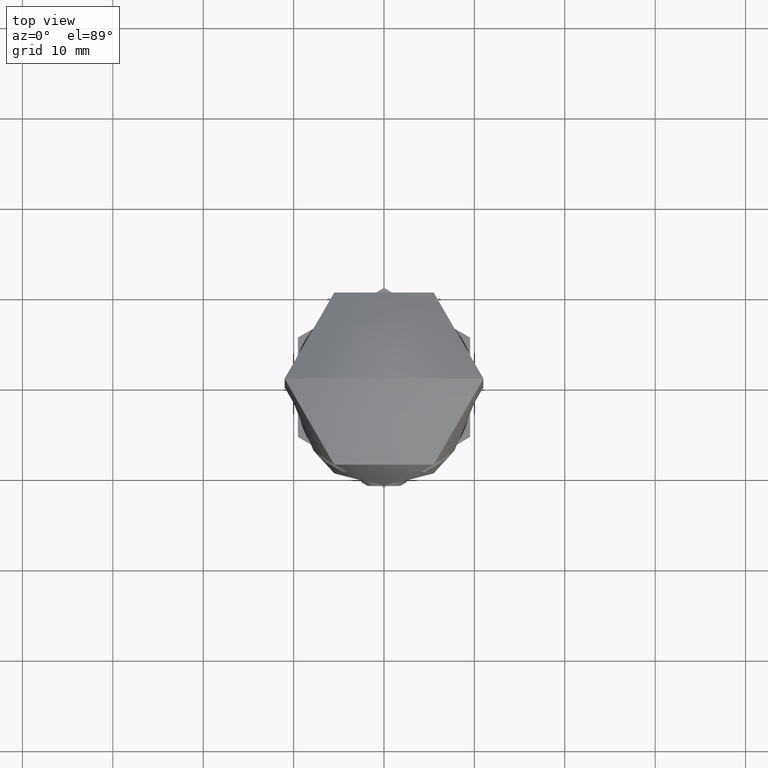
[diagram: clean part render]
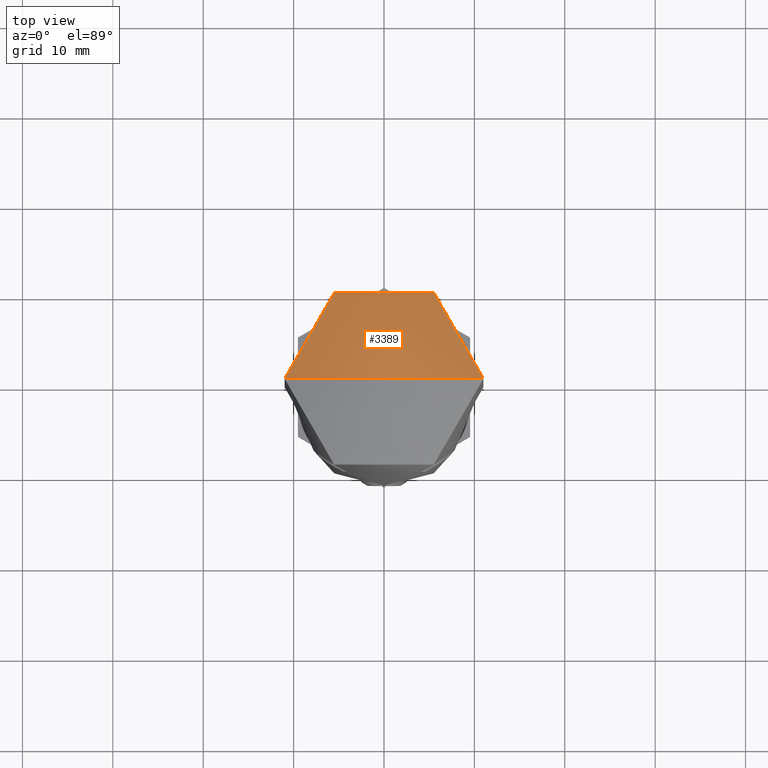
[diagram: same view with one face highlighted and labeled with its STEP entity id]
A machine part, top view. The second image highlights one B-rep face of the part: STEP entity #3389.
In plain terms, the highlighted toroidal blend (fillet) surface has major radius 1.713 mm and minor (blend) radius 28 mm.
Its self-contained STEP definition (entity closure, byte-faithful):
#185 = CARTESIAN_POINT ( 'NONE',  ( 0.000000000000000000, 0.000000000000000000, 55.00000000000000000 ) ) ;
#339 = DIRECTION ( 'NONE',  ( -0.000000000000000000, -0.000000000000000000, 1.000000000000000000 ) ) ;
#591 = CIRCLE ( 'NONE', #18762, 10.99999999999999289 ) ;
#694 = VERTEX_POINT ( 'NONE', #2784 ) ;
#909 = ORIENTED_EDGE ( 'NONE', *, *, #18631, .T. ) ;
#1139 = EDGE_CURVE ( 'NONE', #3638, #694, #7663, .T. ) ;
#1243 = AXIS2_PLACEMENT_3D ( 'NONE', #17915, #2475, #11125 ) ;
#1449 = FACE_OUTER_BOUND ( 'NONE', #13148, .T. ) ;
#2475 = DIRECTION ( 'NONE',  ( 1.224646799147353207E-16, 1.000000000000000000, 0.000000000000000000 ) ) ;
#2784 = CARTESIAN_POINT ( 'NONE',  ( 0.000000000000000000, -0.000000000000000000, 58.00000000000000000 ) ) ;
#3389 = ADVANCED_FACE ( 'NONE', ( #1449 ), #6296, .T. ) ;
#3638 = VERTEX_POINT ( 'NONE', #5500 ) ;
#4513 = CARTESIAN_POINT ( 'NONE',  ( 10.99999999999999289, 0.000000000000000000, 55.00000000000000000 ) ) ;
#4873 = VERTEX_POINT ( 'NONE', #4513 ) ;
#5500 = CARTESIAN_POINT ( 'NONE',  ( -10.99999999999999289, 1.347111479062087813E-15, 55.00000000000000000 ) ) ;
#6296 = TOROIDAL_SURFACE ( 'NONE', #21799, -1.712969088865089695, 28.00000000000000000 ) ;
#7663 = CIRCLE ( 'NONE', #1243, 28.00000000000000000 ) ;
#7790 = DIRECTION ( 'NONE',  ( -0.000000000000000000, -0.000000000000000000, 1.000000000000000000 ) ) ;
#9076 = DIRECTION ( 'NONE',  ( 1.000000000000000000, 0.000000000000000000, 0.000000000000000000 ) ) ;
#11125 = DIRECTION ( 'NONE',  ( -1.000000000000000000, 1.224646799147353207E-16, 0.000000000000000000 ) ) ;
#13039 = DIRECTION ( 'NONE',  ( 1.000000000000000000, 0.000000000000000000, 0.000000000000000000 ) ) ;
#13148 = EDGE_LOOP ( 'NONE', ( #909, #14475, #16118 ) ) ;
#13218 = EDGE_CURVE ( 'NONE', #4873, #694, #21844, .T. ) ;
#14475 = ORIENTED_EDGE ( 'NONE', *, *, #1139, .T. ) ;
#16118 = ORIENTED_EDGE ( 'NONE', *, *, #13218, .F. ) ;
#17348 = DIRECTION ( 'NONE',  ( 0.000000000000000000, -1.000000000000000000, 0.000000000000000000 ) ) ;
#17420 = DIRECTION ( 'NONE',  ( 0.000000000000000000, 0.000000000000000000, -1.000000000000000000 ) ) ;
#17915 = CARTESIAN_POINT ( 'NONE',  ( 1.712969088865089695, -2.097782111716990278E-16, 30.05244667416139492 ) ) ;
#18176 = CARTESIAN_POINT ( 'NONE',  ( 0.000000000000000000, 0.000000000000000000, 30.05244667416139492 ) ) ;
#18631 = EDGE_CURVE ( 'NONE', #4873, #3638, #591, .T. ) ;
#18762 = AXIS2_PLACEMENT_3D ( 'NONE', #185, #339, #9076 ) ;
#19714 = AXIS2_PLACEMENT_3D ( 'NONE', #20751, #17348, #17420 ) ;
#20751 = CARTESIAN_POINT ( 'NONE',  ( -1.712969088865089695, 0.000000000000000000, 30.05244667416139492 ) ) ;
#21799 = AXIS2_PLACEMENT_3D ( 'NONE', #18176, #7790, #13039 ) ;
#21844 = CIRCLE ( 'NONE', #19714, 28.00000000000000000 ) ;